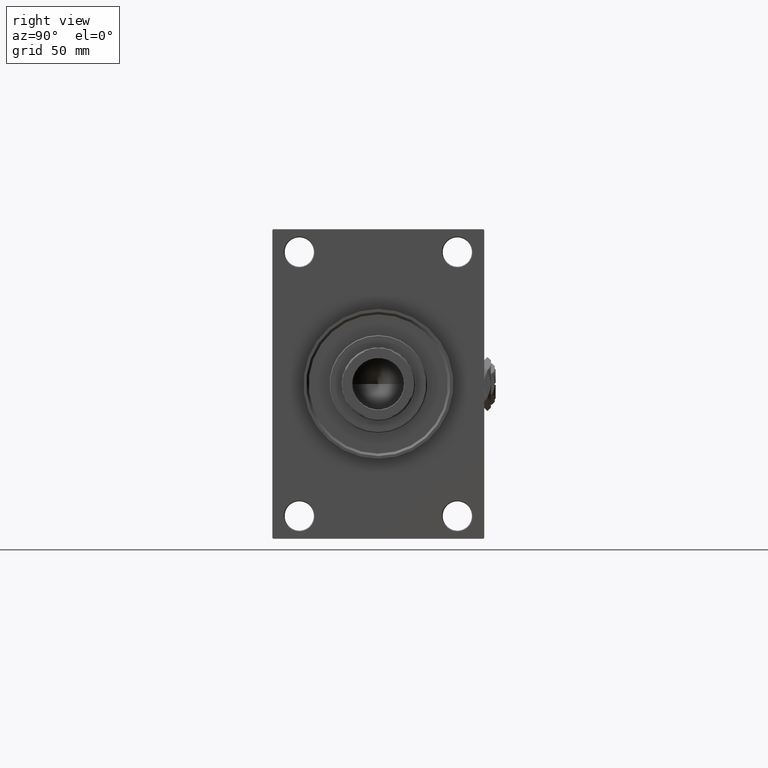
[diagram: clean part render]
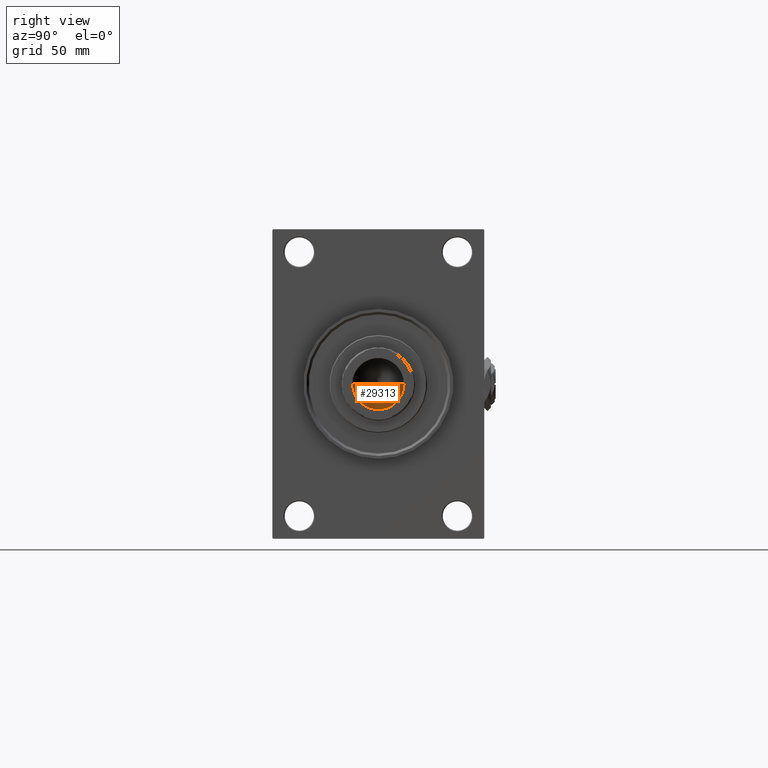
[diagram: same view with one face highlighted and labeled with its STEP entity id]
A machine part, right view. The second image highlights one B-rep face of the part: STEP entity #29313.
In plain terms, the highlighted conical surface has half-angle 59 deg.
Its self-contained STEP definition (entity closure, byte-faithful):
#2261 = CIRCLE ( 'NONE', #22423, 15.74999999999998934 ) ;
#6272 = CONICAL_SURFACE ( 'NONE', #24814, 15.74999999999998934, 1.029744258676653645 ) ;
#8845 = VERTEX_POINT ( 'NONE', #43668 ) ;
#10242 = DIRECTION ( 'NONE',  ( -0.000000000000000000, -0.000000000000000000, 1.000000000000000000 ) ) ;
#12648 = LINE ( 'NONE', #28547, #16435 ) ;
#12726 = EDGE_CURVE ( 'NONE', #45887, #40140, #12648, .T. ) ;
#16435 = VECTOR ( 'NONE', #20220, 1000.000000000000000 ) ;
#17244 = CARTESIAN_POINT ( 'NONE',  ( 0.000000000000000000, 0.000000000000000000, 263.0000000000000000 ) ) ;
#18536 = CARTESIAN_POINT ( 'NONE',  ( -15.74999999999998934, 1.928818708657080161E-15, 263.0000000000000000 ) ) ;
#20220 = DIRECTION ( 'NONE',  ( 0.8571673007021118895, 0.000000000000000000, 0.5150380749100549327 ) ) ;
#21045 = DIRECTION ( 'NONE',  ( 1.000000000000000000, 0.000000000000000000, 0.000000000000000000 ) ) ;
#22039 = EDGE_LOOP ( 'NONE', ( #37484, #33750, #33674 ) ) ;
#22348 = DIRECTION ( 'NONE',  ( 1.000000000000000000, 0.000000000000000000, 0.000000000000000000 ) ) ;
#22423 = AXIS2_PLACEMENT_3D ( 'NONE', #29933, #10242, #22348 ) ;
#22549 = EDGE_CURVE ( 'NONE', #45887, #8845, #45348, .T. ) ;
#24814 = AXIS2_PLACEMENT_3D ( 'NONE', #17244, #25331, #21045 ) ;
#25331 = DIRECTION ( 'NONE',  ( -0.000000000000000000, -0.000000000000000000, 1.000000000000000000 ) ) ;
#25733 = CARTESIAN_POINT ( 'NONE',  ( -1.584115414415908206E-14, 0.000000000000000000, 253.5364452503159214 ) ) ;
#26130 = DIRECTION ( 'NONE',  ( -0.8571673007021118895, 1.049727191138618079E-16, 0.5150380749100549327 ) ) ;
#28547 = CARTESIAN_POINT ( 'NONE',  ( 15.74999999999998934, 0.000000000000000000, 263.0000000000000000 ) ) ;
#29313 = ADVANCED_FACE ( 'NONE', ( #33409 ), #6272, .F. ) ;
#29807 = EDGE_CURVE ( 'NONE', #40140, #8845, #2261, .T. ) ;
#29933 = CARTESIAN_POINT ( 'NONE',  ( 0.000000000000000000, 0.000000000000000000, 263.0000000000000000 ) ) ;
#30689 = CARTESIAN_POINT ( 'NONE',  ( 15.74999999999998934, 0.000000000000000000, 263.0000000000000000 ) ) ;
#33409 = FACE_OUTER_BOUND ( 'NONE', #22039, .T. ) ;
#33674 = ORIENTED_EDGE ( 'NONE', *, *, #29807, .T. ) ;
#33750 = ORIENTED_EDGE ( 'NONE', *, *, #12726, .T. ) ;
#35978 = VECTOR ( 'NONE', #26130, 1000.000000000000000 ) ;
#37484 = ORIENTED_EDGE ( 'NONE', *, *, #22549, .F. ) ;
#40140 = VERTEX_POINT ( 'NONE', #30689 ) ;
#43668 = CARTESIAN_POINT ( 'NONE',  ( -15.74999999999998934, 1.928818708657080161E-15, 263.0000000000000000 ) ) ;
#45348 = LINE ( 'NONE', #18536, #35978 ) ;
#45887 = VERTEX_POINT ( 'NONE', #25733 ) ;